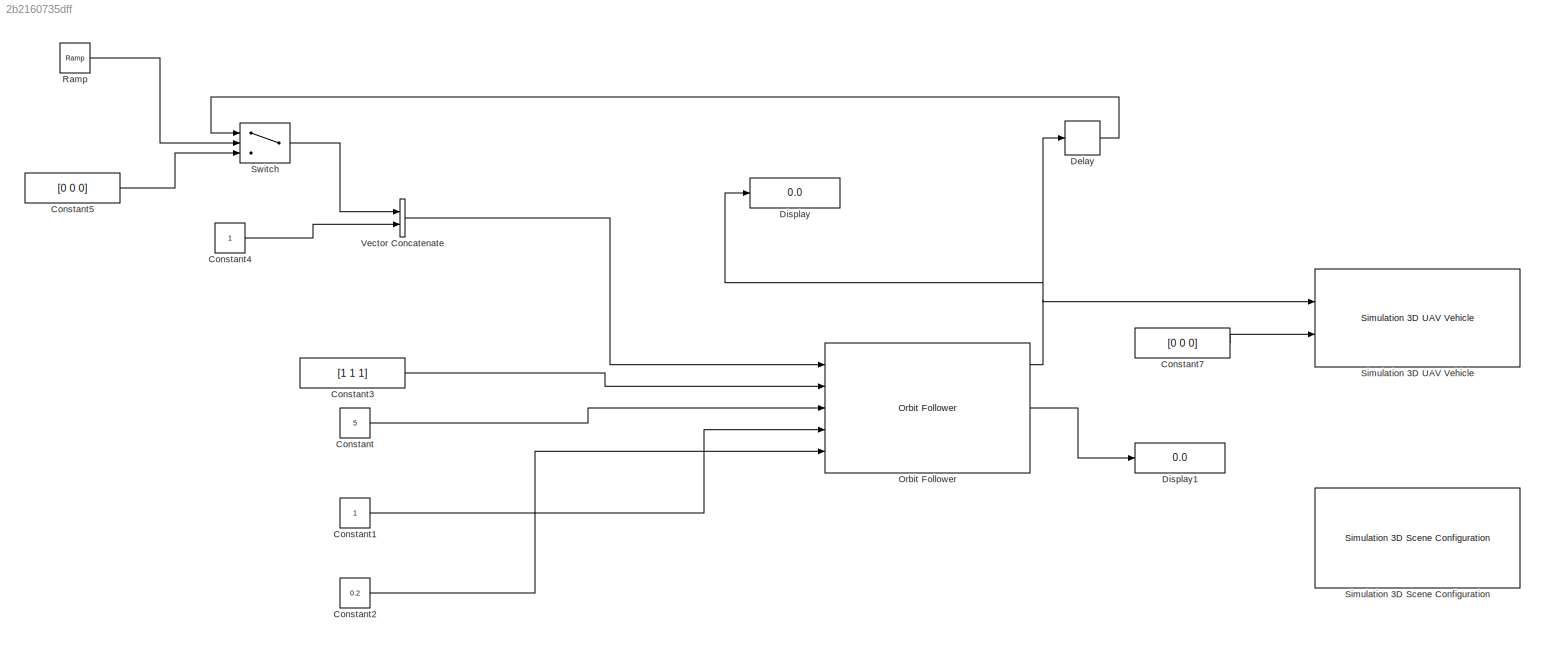
MODEL slx_2b2160735dff
KIND model
CONFIG AbsTol = auto
CONFIG EnableMultiTasking = off
CONFIG FixedStep = auto
CONFIG MaxStep = auto
CONFIG MinStep = auto
CONFIG RelTol = 1e-3
CONFIG SampleTimeConstraint = Unconstrained
CONFIG SolverName = VariableStepAuto
CONFIG StartTime = 0.0
CONFIG StopTime = 10.0
BLOCK [Constant] Constant
  Value = 5
BLOCK [Constant] Constant1
BLOCK [Constant] Constant2
  Value = 0.2
BLOCK [Constant] Constant3
  Value = [1 1 1]
BLOCK [Constant] Constant4
BLOCK [Constant] Constant5
  Value = [0 0 0]
BLOCK [Constant] Constant7
  Value = [0 0 0]
BLOCK [Delay] Delay
  DelayLength = 1
  InputPortMap = u0
  Ports = [1, 1]
BLOCK [Display] Display
  Decimation = 1
  Ports = [1]
BLOCK [Display] Display1
  Decimation = 1
  Ports = [1]
BLOCK [Reference] Orbit Follower  REF=uavalgslib/Orbit Follower
  Ports = [5, 5]
  SourceBlock = uavalgslib/Orbit Follower
  SourceProductBaseCode = UV
  SourceType = uav.sluav.internal.system.OrbitFollower
BLOCK [Reference] Ramp  REF=simulink/Sources/Ramp
  Ports = [0, 1]
  SourceBlock = simulink/Sources/Ramp
  SourceProductBaseCode = SL
  SourceType = Ramp
BLOCK [Reference] Simulation 3D Scene Configuration  REF=sim3dlib/Simulation 3D Scene Configuration
  Ports = []
  Priority = 0
  SourceBlock = sim3dlib/Simulation 3D Scene Configuration
  SourceProductBaseCode = DR,UV,VE
  SourceType = Simulation 3D Scene Configuration
BLOCK [Reference] Simulation 3D UAV Vehicle  REF=uavsim3dlib/Simulation 3D UAV Vehicle
  Ports = [2]
  Priority = -1
  SourceBlock = uavsim3dlib/Simulation 3D UAV Vehicle
  SourceProductBaseCode = UV
  SourceType = Simulation 3D UAV Vehicle
BLOCK [Switch] Switch
  Criteria = u2 > Threshold
  InputSameDT = off
  SaturateOnIntegerOverflow = off
BLOCK [Concatenate] Vector Concatenate
  Ports = [2, 1]
LINE Constant1:1 -> Orbit Follower:4
LINE Constant2:1 -> Orbit Follower:5
LINE Constant3:1 -> Orbit Follower:2
LINE Constant4:1 -> Vector Concatenate:2
LINE Constant5:1 -> Switch:3
LINE Constant7:1 -> Simulation 3D UAV Vehicle:2
LINE Constant:1 -> Orbit Follower:3
LINE Delay:1 -> Switch:1
NET Orbit Follower:1 -> Delay:1, Display:1, Simulation 3D UAV Vehicle:1
LINE Orbit Follower:3 -> Display1:1
LINE Ramp:1 -> Switch:2
LINE Switch:1 -> Vector Concatenate:1
LINE Vector Concatenate:1 -> Orbit Follower:1
note: NET lines group one-source signal fan-out (src -> all destinations, sorted); 1:1 wires keep LINE
